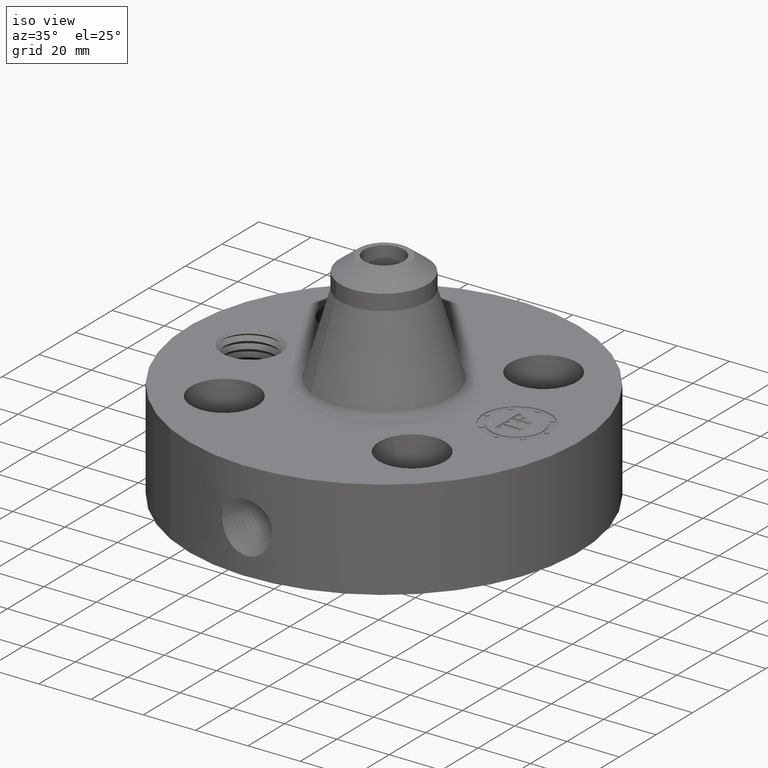
[diagram: clean part render]
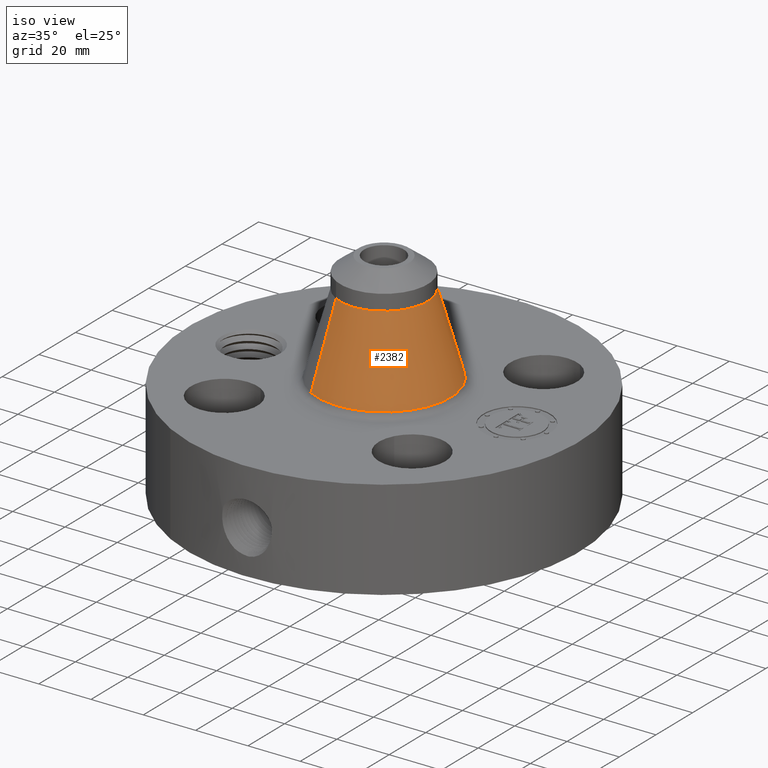
[diagram: same view with one face highlighted and labeled with its STEP entity id]
A machine part, iso view. The second image highlights one B-rep face of the part: STEP entity #2382.
In plain terms, the highlighted conical surface has half-angle 15.915 deg.
Its self-contained STEP definition (entity closure, byte-faithful):
#1768=AXIS2_PLACEMENT_3D('Circle Axis2P3D',#1766,#1767,$) ;
#2355=AXIS2_PLACEMENT_3D('Cone Axis2P3D',#2352,#2353,#2354) ;
#2366=AXIS2_PLACEMENT_3D('Circle Axis2P3D',#2364,#2365,$) ;
#1763=CARTESIAN_POINT('Vertex',(0.481901975155,0.88211564859,1.83709402282)) ;
#1766=CARTESIAN_POINT('Axis2P3D Location',(0.,0.,1.83709402282)) ;
#1770=CARTESIAN_POINT('Vertex',(-0.481901975155,-0.88211564859,1.83709402282)) ;
#2352=CARTESIAN_POINT('Axis2P3D Location',(0.,0.,3.04757759628)) ;
#2357=CARTESIAN_POINT('Line Origine',(0.399161415317,0.73066006972,2.44233580955)) ;
#2361=CARTESIAN_POINT('Vertex',(0.31642085548,0.57920449085,3.04757759628)) ;
#2364=CARTESIAN_POINT('Axis2P3D Location',(0.,0.,3.04757759628)) ;
#2368=CARTESIAN_POINT('Vertex',(-0.31642085548,-0.57920449085,3.04757759628)) ;
#2371=CARTESIAN_POINT('Line Origine',(-0.399161415317,-0.73066006972,2.44233580955)) ;
#1767=DIRECTION('Axis2P3D Direction',(0.,0.,-0.0393700787402)) ;
#2353=DIRECTION('Axis2P3D Direction',(0.,0.,-0.0393700787402)) ;
#2354=DIRECTION('Axis2P3D XDirection',(-0.0188750212049,-0.0345504945626,0.)) ;
#2358=DIRECTION('Vector Direction',(0.00517584180953,0.00947431488187,-0.0378609445087)) ;
#2365=DIRECTION('Axis2P3D Direction',(0.,0.,-0.0393700787402)) ;
#2372=DIRECTION('Vector Direction',(-0.00517584180953,-0.00947431488187,-0.0378609445087)) ;
#2359=VECTOR('Line Direction',#2358,0.0393700787402) ;
#2373=VECTOR('Line Direction',#2372,0.0393700787402) ;
#2377=ORIENTED_EDGE('',*,*,#1772,.F.) ;
#2378=ORIENTED_EDGE('',*,*,#2363,.T.) ;
#2379=ORIENTED_EDGE('',*,*,#2370,.T.) ;
#2380=ORIENTED_EDGE('',*,*,#2375,.F.) ;
#2382=ADVANCED_FACE('PartBody',(#2381),#2356,.T.) ;
#1769=CIRCLE('generated circle',#1768,1.00516542477) ;
#2367=CIRCLE('generated circle',#2366,0.660000000003) ;
#2356=CONICAL_SURFACE('Cone',#2355,0.660000000003,0.277774852999) ;
#1772=EDGE_CURVE('',#1764,#1771,#1769,.T.) ;
#2363=EDGE_CURVE('',#1764,#2362,#2360,.F.) ;
#2370=EDGE_CURVE('',#2362,#2369,#2367,.T.) ;
#2375=EDGE_CURVE('',#1771,#2369,#2374,.F.) ;
#2376=EDGE_LOOP('',(#2377,#2378,#2379,#2380)) ;
#2381=FACE_OUTER_BOUND('',#2376,.T.) ;
#2360=LINE('Line',#2357,#2359) ;
#2374=LINE('Line',#2371,#2373) ;
#1764=VERTEX_POINT('',#1763) ;
#1771=VERTEX_POINT('',#1770) ;
#2362=VERTEX_POINT('',#2361) ;
#2369=VERTEX_POINT('',#2368) ;